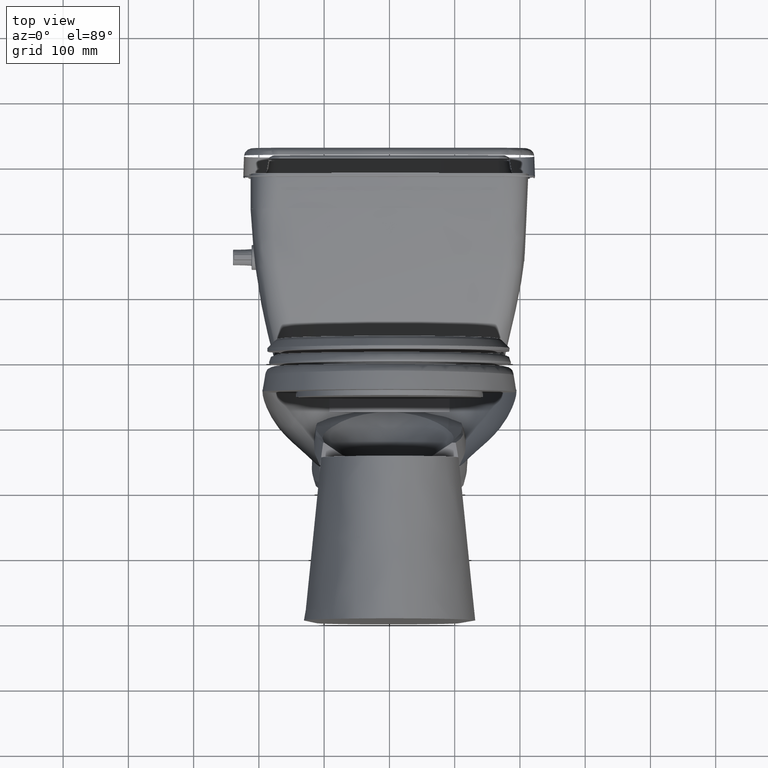
[diagram: clean part render]
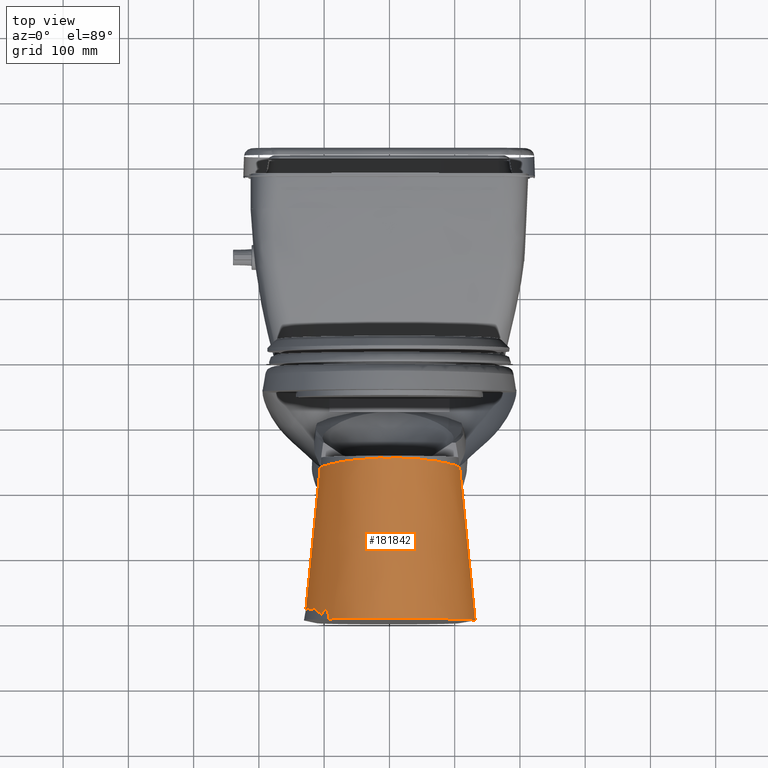
[diagram: same view with one face highlighted and labeled with its STEP entity id]
A machine part, top view. The second image highlights one B-rep face of the part: STEP entity #181842.
In plain terms, the highlighted face is a freeform B-spline surface patch.
Its self-contained STEP definition (entity closure, byte-faithful):
#1984 = CARTESIAN_POINT ( 'NONE',  ( -4.121961417862205000, -5.724391918795275200, 9.842519685038977800 ) ) ;
#8253 = VERTEX_POINT ( 'NONE', #49367 ) ;
#14315 = B_SPLINE_CURVE_WITH_KNOTS ( 'NONE', 11,
 ( #82205, #190555, #68651, #132302, #118107, #84210, #40848, #85559, #69338, #39493, #162096, #53096 ),
 .UNSPECIFIED., .F., .F.,
 ( 12, 12 ),
 ( 0.0000000000000000000, 0.3952441088800229300 ),
 .UNSPECIFIED. ) ;
#18232 = CARTESIAN_POINT ( 'NONE',  ( 5.095815960424410200, -6.620476250374015800, 0.0000000000000000000 ) ) ;
#18893 = CARTESIAN_POINT ( 'NONE',  ( -4.117805221122047500, -4.070216303740157700, 9.842519685039370400 ) ) ;
#19553 = CARTESIAN_POINT ( 'NONE',  ( 3.660067803934016400, -10.55453326753543500, 0.0000000000000000000 ) ) ;
#25428 = CARTESIAN_POINT ( 'NONE',  ( -5.104533480763779900, -4.458025634704724500, 0.0000000000000000000 ) ) ;
#33077 = CARTESIAN_POINT ( 'NONE',  ( -0.7843653810700788000, -12.65576721388976500, 0.0000000000000000000 ) ) ;
#34435 = CARTESIAN_POINT ( 'NONE',  ( -5.104533480763779900, -4.458025634704724500, 0.0000000000000000000 ) ) ;
#37110 = DIRECTION ( 'NONE',  ( 0.1005620404416615500, -0.04053198080598886800, -0.9941048408262342900 ) ) ;
#39493 = CARTESIAN_POINT ( 'NONE',  ( 3.794489626244006000, -7.398468315716322700, 9.842519685038988400 ) ) ;
#40326 = CARTESIAN_POINT ( 'NONE',  ( 3.660067803934016400, -10.55453326753543500, 3.773047606664283400E-017 ) ) ;
#40768 = VERTEX_POINT ( 'NONE', #81625 ) ;
#40848 = CARTESIAN_POINT ( 'NONE',  ( 0.6932762060932449200, -10.57119491618076700, 9.842519685045681800 ) ) ;
#48711 = CARTESIAN_POINT ( 'NONE',  ( -3.605031774843307600, -10.53026053231496200, 0.0000000000000000000 ) ) ;
#49367 = CARTESIAN_POINT ( 'NONE',  ( -4.117805221122047500, -4.070216303740157700, 9.842519685039370400 ) ) ;
#50717 = CARTESIAN_POINT ( 'NONE',  ( 1.978883020015039600, -9.976668499153543500, 9.842519685034252700 ) ) ;
#53096 = CARTESIAN_POINT ( 'NONE',  ( 4.174824646301771300, -4.091051939885827200, 9.842519685039370400 ) ) ;
#60198 = EDGE_LOOP ( 'NONE', ( #156255, #129586, #61497, #86332 ) ) ;
#61497 = ORIENTED_EDGE ( 'NONE', *, *, #96391, .F. ) ;
#63622 = CARTESIAN_POINT ( 'NONE',  ( 3.046744038675866000, -8.869374823464566400, 9.842519685042916000 ) ) ;
#64131 = CARTESIAN_POINT ( 'NONE',  ( 5.170478044178740800, -4.492354501318898100, 0.0000000000000000000 ) ) ;
#66307 = CARTESIAN_POINT ( 'NONE',  ( -4.531440910417323700, -8.683530350602362400, 0.0000000000000000000 ) ) ;
#66586 = B_SPLINE_CURVE_WITH_KNOTS ( 'NONE', 11,
 ( #150662, #164939, #117593, #40326, #71517, #87754, #118256, #195401, #72181, #164267, #102642, #25428 ),
 .UNSPECIFIED., .F., .F.,
 ( 12, 12 ),
 ( 0.0000000000000000000, 0.4946121743417176100 ),
 .UNSPECIFIED. ) ;
#68651 = CARTESIAN_POINT ( 'NONE',  ( -3.754094987380190300, -7.379502129487979900, 9.842519685041351000 ) ) ;
#69338 = CARTESIAN_POINT ( 'NONE',  ( 3.046744038675766900, -8.869374823464294600, 9.842519685044502300 ) ) ;
#71517 = CARTESIAN_POINT ( 'NONE',  ( 2.369644185196181100, -11.92808824982283500, 3.773047606660962200E-017 ) ) ;
#72181 = CARTESIAN_POINT ( 'NONE',  ( -3.605031774843307600, -10.53026053231496200, 3.773047606662471500E-017 ) ) ;
#75848 = LINE ( 'NONE', #96539, #134027 ) ;
#79147 = CARTESIAN_POINT ( 'NONE',  ( 0.6932762060932677900, -10.57119491618110300, 9.842519685044095500 ) ) ;
#80488 = CARTESIAN_POINT ( 'NONE',  ( -2.317085483321260000, -11.91242986173228500, 0.0000000000000000000 ) ) ;
#81172 = CARTESIAN_POINT ( 'NONE',  ( 3.794489626244133900, -7.398468315716535800, 9.842519685037402200 ) ) ;
#81625 = CARTESIAN_POINT ( 'NONE',  ( 4.174824646301771300, -4.091051939885827200, 9.842519685039370400 ) ) ;
#82205 = CARTESIAN_POINT ( 'NONE',  ( -4.117805221122047500, -4.070216303740157700, 9.842519685039370400 ) ) ;
#84210 = CARTESIAN_POINT ( 'NONE',  ( -0.6688638816389577100, -10.56777247290911100, 9.842519685037020200 ) ) ;
#85559 = CARTESIAN_POINT ( 'NONE',  ( 1.978883020014976700, -9.976668499153229100, 9.842519685035839000 ) ) ;
#86332 = ORIENTED_EDGE ( 'NONE', *, *, #104100, .F. ) ;
#87754 = CARTESIAN_POINT ( 'NONE',  ( 0.8355968105508662100, -12.66117951589370200, 3.773047606664735800E-017 ) ) ;
#93909 = VERTEX_POINT ( 'NONE', #64131 ) ;
#94746 = CARTESIAN_POINT ( 'NONE',  ( 4.589791693120473000, -8.714004435885828000, 0.0000000000000000000 ) ) ;
#95748 = B_SPLINE_SURFACE_WITH_KNOTS ( 'NONE', 11, 1, ( 
 ( #125903, #113006 ),
 ( #18232, #173937 ),
 ( #94746, #81172 ),
 ( #19553, #63622 ),
 ( #126575, #50717 ),
 ( #190189, #79147 ),
 ( #33077, #141451 ),
 ( #80488, #188851 ),
 ( #48711, #156354 ),
 ( #66307, #187518 ),
 ( #189524, #1984 ),
 ( #142776, #18893 ) ),
 .UNSPECIFIED., .F., .F., .F.,
 ( 12, 12 ),
 ( 2, 2 ),
 ( 4.712388980384999600, 7.853981633973999600 ),
 ( 0.0000000000000000000, 1.000000000000000000 ),
 .UNSPECIFIED. ) ;
#96391 = EDGE_CURVE ( 'NONE', #93909, #139624, #66586, .T. ) ;
#96539 = CARTESIAN_POINT ( 'NONE',  ( -4.611169350942913200, -4.264120969222441100, 4.921259842519685200 ) ) ;
#96754 = FACE_OUTER_BOUND ( 'NONE', #60198, .T. ) ;
#102642 = CARTESIAN_POINT ( 'NONE',  ( -5.033698090437008300, -6.586633491574803000, 3.773047606662773500E-017 ) ) ;
#104100 = EDGE_CURVE ( 'NONE', #40768, #93909, #171899, .T. ) ;
#113006 = CARTESIAN_POINT ( 'NONE',  ( 4.174824646301575900, -4.091051939885827200, 9.842519685039370400 ) ) ;
#117593 = CARTESIAN_POINT ( 'NONE',  ( 4.589791693120473000, -8.714004435885828000, 3.773047606662170100E-017 ) ) ;
#118107 = CARTESIAN_POINT ( 'NONE',  ( -1.951466929591279900, -9.966793303621731300, 9.842519685043319200 ) ) ;
#118256 = CARTESIAN_POINT ( 'NONE',  ( -0.7843653810700788000, -12.65576721388976500, 3.773047606661415800E-017 ) ) ;
#121059 = VECTOR ( 'NONE', #37110, 39.37007874015748100 ) ;
#125903 = CARTESIAN_POINT ( 'NONE',  ( 5.170478044178740800, -4.492354501318898100, 0.0000000000000000000 ) ) ;
#126575 = CARTESIAN_POINT ( 'NONE',  ( 2.369644185196181100, -11.92808824982283500, 0.0000000000000000000 ) ) ;
#129586 = ORIENTED_EDGE ( 'NONE', *, *, #154196, .F. ) ;
#129950 = CARTESIAN_POINT ( 'NONE',  ( 4.672651345240158300, -4.291703220602362200, 4.921259842519685200 ) ) ;
#132302 = CARTESIAN_POINT ( 'NONE',  ( -3.013750242356597400, -8.854147536613902900, 9.842519685039775400 ) ) ;
#134027 = VECTOR ( 'NONE', #173722, 39.37007874015748100 ) ;
#139624 = VERTEX_POINT ( 'NONE', #34435 ) ;
#141451 = CARTESIAN_POINT ( 'NONE',  ( -0.6688638816389764800, -10.56777247290945000, 9.842519685035434000 ) ) ;
#142776 = CARTESIAN_POINT ( 'NONE',  ( -5.104533480763779900, -4.458025634704724500, 0.0000000000000000000 ) ) ;
#150662 = CARTESIAN_POINT ( 'NONE',  ( 5.170478044178740800, -4.492354501318898100, 0.0000000000000000000 ) ) ;
#154196 = EDGE_CURVE ( 'NONE', #139624, #8253, #75848, .T. ) ;
#156255 = ORIENTED_EDGE ( 'NONE', *, *, #197303, .F. ) ;
#156354 = CARTESIAN_POINT ( 'NONE',  ( -3.013750242356692900, -8.854147536614172900, 9.842519685038189100 ) ) ;
#162096 = CARTESIAN_POINT ( 'NONE',  ( 4.170668449560481300, -5.745227554936867900, 9.842519685041351000 ) ) ;
#164267 = CARTESIAN_POINT ( 'NONE',  ( -4.531440910417323700, -8.683530350602362400, 3.773047606663075500E-017 ) ) ;
#164939 = CARTESIAN_POINT ( 'NONE',  ( 5.095815960424410200, -6.620476250374015800, 3.773047606663075500E-017 ) ) ;
#171899 = LINE ( 'NONE', #129950, #121059 ) ;
#173722 = DIRECTION ( 'NONE',  ( 0.09967500162825622400, 0.03917481365070180800, 0.9942485745656565200 ) ) ;
#173937 = CARTESIAN_POINT ( 'NONE',  ( 4.170668449560630500, -5.745227554937008200, 9.842519685039762900 ) ) ;
#181842 = ADVANCED_FACE ( 'NONE', ( #96754 ), #95748, .F. ) ;
#187518 = CARTESIAN_POINT ( 'NONE',  ( -3.754094987380315100, -7.379502129488189500, 9.842519685039762900 ) ) ;
#188851 = CARTESIAN_POINT ( 'NONE',  ( -1.951466929591338500, -9.966793303622047500, 9.842519685041732900 ) ) ;
#189524 = CARTESIAN_POINT ( 'NONE',  ( -5.033698090437008300, -6.586633491574803000, 0.0000000000000000000 ) ) ;
#190189 = CARTESIAN_POINT ( 'NONE',  ( 0.8355968105508662100, -12.66117951589370200, 0.0000000000000000000 ) ) ;
#190555 = CARTESIAN_POINT ( 'NONE',  ( -4.121961417862057600, -5.724391918795135800, 9.842519685040564100 ) ) ;
#195401 = CARTESIAN_POINT ( 'NONE',  ( -2.317085483321260000, -11.91242986173228500, 3.773047606663829800E-017 ) ) ;
#197303 = EDGE_CURVE ( 'NONE', #8253, #40768, #14315, .T. ) ;